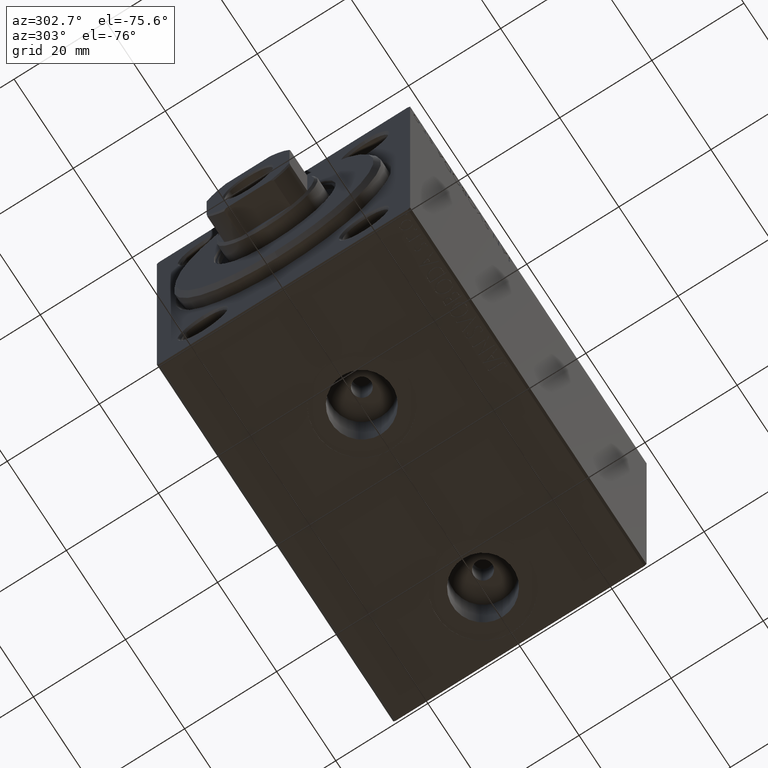
[diagram: clean part render]
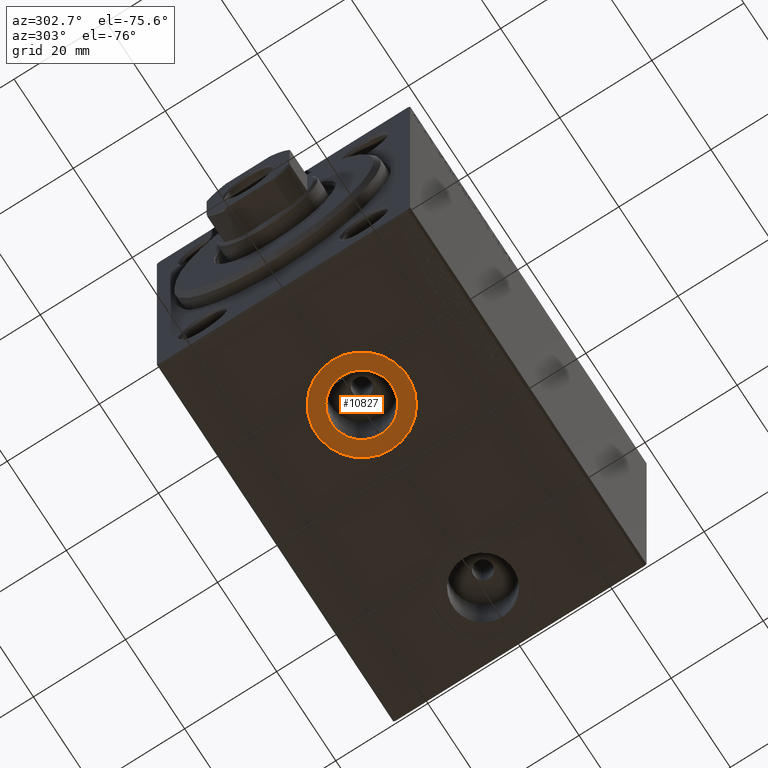
[diagram: same view with one face highlighted and labeled with its STEP entity id]
A machine part, auxiliary view. The second image highlights one B-rep face of the part: STEP entity #10827.
In plain terms, the highlighted planar face has unit normal (0, 0, -1).
Its self-contained STEP definition (entity closure, byte-faithful):
#365 = CARTESIAN_POINT ( 'NONE',  ( 0.000000000000000000, 0.000000000000000000, -37.39999999999999858 ) ) ;
#3627 = VERTEX_POINT ( 'NONE', #17461 ) ;
#3945 = EDGE_CURVE ( 'NONE', #14465, #32521, #11403, .T. ) ;
#5175 = ORIENTED_EDGE ( 'NONE', *, *, #31377, .T. ) ;
#5447 = CARTESIAN_POINT ( 'NONE',  ( 19.91999999999999815, -3.461774290897328353E-15, -37.39999999999999858 ) ) ;
#5779 = DIRECTION ( 'NONE',  ( -1.000000000000000000, 0.000000000000000000, 0.000000000000000000 ) ) ;
#6017 = CARTESIAN_POINT ( 'NONE',  ( 26.50000000000000000, -3.461774290897328353E-15, -37.39999999999999858 ) ) ;
#7632 = CIRCLE ( 'NONE', #30455, 9.999999999999998224 ) ;
#8565 = EDGE_LOOP ( 'NONE', ( #38206, #29021 ) ) ;
#10672 = CIRCLE ( 'NONE', #12897, 9.999999999999998224 ) ;
#10827 = ADVANCED_FACE ( 'NONE', ( #34955, #17887 ), #20677, .T. ) ;
#11003 = EDGE_CURVE ( 'NONE', #32521, #14465, #21084, .T. ) ;
#11403 = CIRCLE ( 'NONE', #24680, 6.580000000000002736 ) ;
#12553 = DIRECTION ( 'NONE',  ( -1.000000000000000000, 0.000000000000000000, 0.000000000000000000 ) ) ;
#12897 = AXIS2_PLACEMENT_3D ( 'NONE', #6017, #19600, #5779 ) ;
#13770 = CARTESIAN_POINT ( 'NONE',  ( 36.50000000000000000, -2.237127491749975294E-15, -37.39999999999999858 ) ) ;
#14465 = VERTEX_POINT ( 'NONE', #5447 ) ;
#17112 = CARTESIAN_POINT ( 'NONE',  ( 33.07999999999999829, -2.655956697058369311E-15, -37.39999999999999858 ) ) ;
#17461 = CARTESIAN_POINT ( 'NONE',  ( 16.50000000000000000, -3.461774290897328353E-15, -37.39999999999999858 ) ) ;
#17887 = FACE_OUTER_BOUND ( 'NONE', #29412, .T. ) ;
#18953 = VERTEX_POINT ( 'NONE', #13770 ) ;
#19600 = DIRECTION ( 'NONE',  ( 0.000000000000000000, 0.000000000000000000, -1.000000000000000000 ) ) ;
#20677 = PLANE ( 'NONE',  #22497 ) ;
#21084 = CIRCLE ( 'NONE', #24018, 6.580000000000002736 ) ;
#22497 = AXIS2_PLACEMENT_3D ( 'NONE', #365, #37964, #23896 ) ;
#23896 = DIRECTION ( 'NONE',  ( -1.000000000000000000, 0.000000000000000000, -0.000000000000000000 ) ) ;
#24018 = AXIS2_PLACEMENT_3D ( 'NONE', #30050, #44121, #12553 ) ;
#24680 = AXIS2_PLACEMENT_3D ( 'NONE', #42509, #32350, #31901 ) ;
#25427 = DIRECTION ( 'NONE',  ( -1.000000000000000000, 0.000000000000000000, 0.000000000000000000 ) ) ;
#29021 = ORIENTED_EDGE ( 'NONE', *, *, #11003, .F. ) ;
#29412 = EDGE_LOOP ( 'NONE', ( #5175, #44235 ) ) ;
#30050 = CARTESIAN_POINT ( 'NONE',  ( 26.50000000000000000, -3.461774290897328353E-15, -37.39999999999999858 ) ) ;
#30455 = AXIS2_PLACEMENT_3D ( 'NONE', #39726, #35816, #25427 ) ;
#31377 = EDGE_CURVE ( 'NONE', #3627, #18953, #7632, .T. ) ;
#31901 = DIRECTION ( 'NONE',  ( -1.000000000000000000, 0.000000000000000000, 0.000000000000000000 ) ) ;
#32350 = DIRECTION ( 'NONE',  ( 0.000000000000000000, 0.000000000000000000, -1.000000000000000000 ) ) ;
#32521 = VERTEX_POINT ( 'NONE', #17112 ) ;
#32623 = EDGE_CURVE ( 'NONE', #18953, #3627, #10672, .T. ) ;
#34955 = FACE_BOUND ( 'NONE', #8565, .T. ) ;
#35816 = DIRECTION ( 'NONE',  ( 0.000000000000000000, 0.000000000000000000, -1.000000000000000000 ) ) ;
#37964 = DIRECTION ( 'NONE',  ( 0.000000000000000000, 0.000000000000000000, -1.000000000000000000 ) ) ;
#38206 = ORIENTED_EDGE ( 'NONE', *, *, #3945, .F. ) ;
#39726 = CARTESIAN_POINT ( 'NONE',  ( 26.50000000000000000, -3.461774290897328353E-15, -37.39999999999999858 ) ) ;
#42509 = CARTESIAN_POINT ( 'NONE',  ( 26.50000000000000000, -3.461774290897328353E-15, -37.39999999999999858 ) ) ;
#44121 = DIRECTION ( 'NONE',  ( 0.000000000000000000, 0.000000000000000000, -1.000000000000000000 ) ) ;
#44235 = ORIENTED_EDGE ( 'NONE', *, *, #32623, .T. ) ;